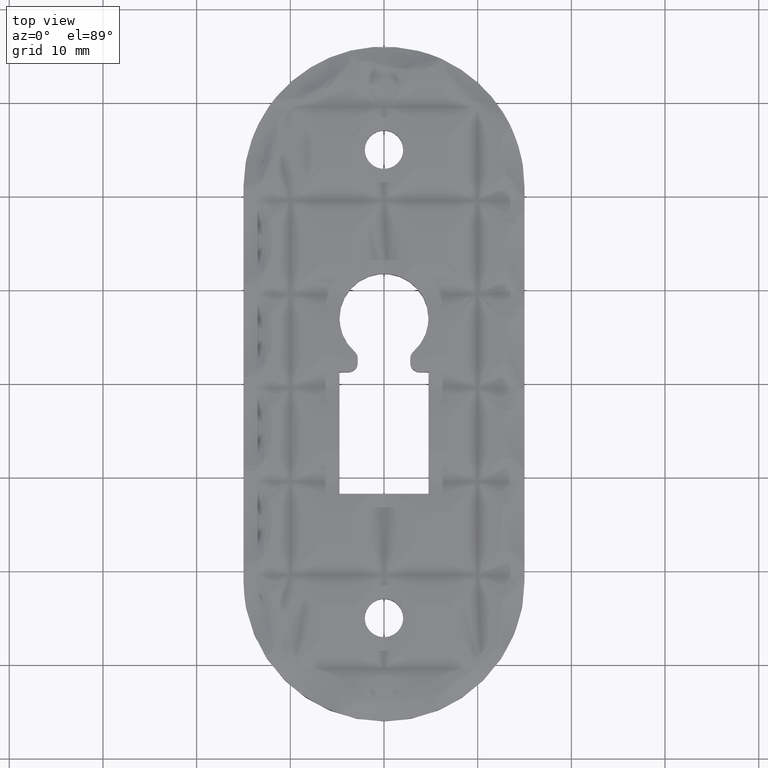
[diagram: clean part render]
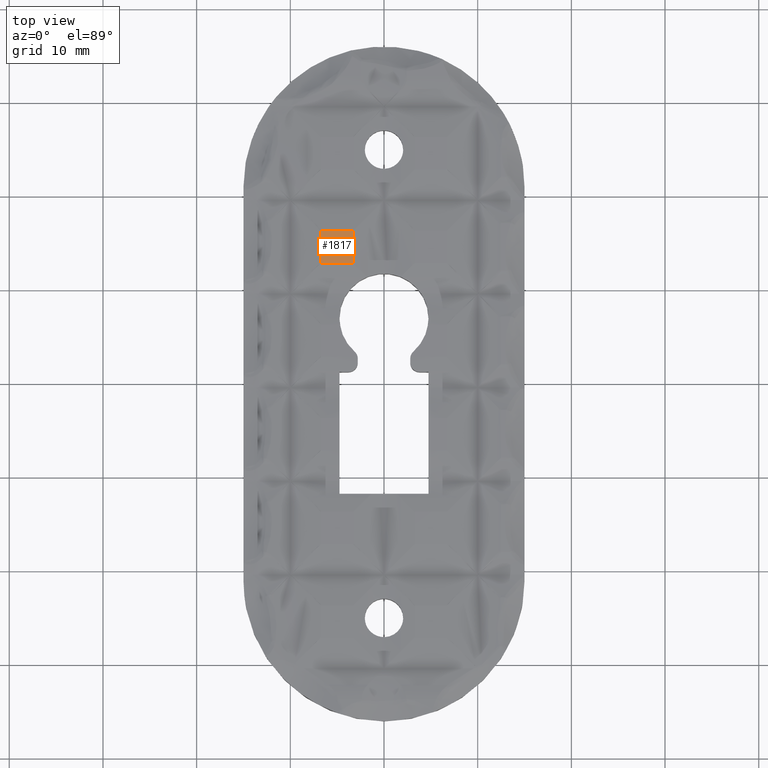
[diagram: same view with one face highlighted and labeled with its STEP entity id]
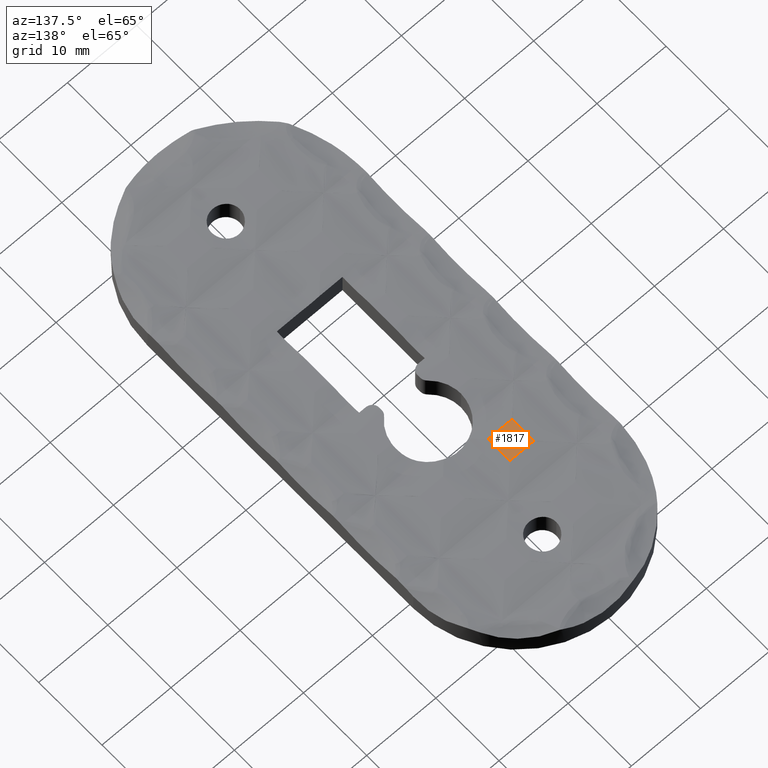
[diagram: same view with one face highlighted and labeled with its STEP entity id]
A machine part, top view. The second image highlights one B-rep face of the part: STEP entity #1817.
A second angle (auxiliary view) of the same face is appended — the face is thin or edge-on in the first view.
In plain terms, the highlighted planar face has unit normal (0, 0, 1).
Its self-contained STEP definition (entity closure, byte-faithful):
#694 = FACE_OUTER_BOUND ( 'NONE', #4011, .T. ) ;
#774 = CARTESIAN_POINT ( 'NONE',  ( -6.726049786572802200, 16.34285370310251300, 3.499999999999999600 ) ) ;
#901 = VECTOR ( 'NONE', #15986, 1000.000000000000000 ) ;
#1213 = EDGE_CURVE ( 'NONE', #24117, #13204, #11459, .T. ) ;
#1433 = ORIENTED_EDGE ( 'NONE', *, *, #16379, .F. ) ;
#1515 = LINE ( 'NONE', #12253, #901 ) ;
#1817 = ADVANCED_FACE ( 'NONE', ( #694 ), #16552, .T. ) ;
#3392 = DIRECTION ( 'NONE',  ( 1.000000000000000000, 0.0000000000000000000, 0.0000000000000000000 ) ) ;
#3423 = CARTESIAN_POINT ( 'NONE',  ( -15.00000000000000000, 16.34285370310250900, 3.499999999999998700 ) ) ;
#4011 = EDGE_LOOP ( 'NONE', ( #20297, #22891, #1433, #10691 ) ) ;
#4917 = VERTEX_POINT ( 'NONE', #19179 ) ;
#5369 = VECTOR ( 'NONE', #7470, 1000.000000000000000 ) ;
#5737 = VERTEX_POINT ( 'NONE', #9631 ) ;
#6145 = CARTESIAN_POINT ( 'NONE',  ( -2.507294680206831200E-015, 20.99999999999999600, 3.500000000000000000 ) ) ;
#6701 = VECTOR ( 'NONE', #23658, 1000.000000000000000 ) ;
#7470 = DIRECTION ( 'NONE',  ( -1.000000000000000000, -0.0000000000000000000, -0.0000000000000000000 ) ) ;
#8027 = DIRECTION ( 'NONE',  ( 1.000000000000000000, 0.0000000000000000000, -0.0000000000000000000 ) ) ;
#8505 = EDGE_CURVE ( 'NONE', #4917, #5737, #15798, .T. ) ;
#8773 = CARTESIAN_POINT ( 'NONE',  ( -3.273950213427205400, -39.76570081116073400, 3.500000000000001300 ) ) ;
#9631 = CARTESIAN_POINT ( 'NONE',  ( -6.726049786572797700, 12.89075412995689600, 3.499999999999999600 ) ) ;
#10691 = ORIENTED_EDGE ( 'NONE', *, *, #1213, .F. ) ;
#11001 = CARTESIAN_POINT ( 'NONE',  ( -15.00000000000000000, 12.89075412995690200, 3.499999999999998700 ) ) ;
#11459 = LINE ( 'NONE', #3423, #21383 ) ;
#11804 = EDGE_CURVE ( 'NONE', #24117, #5737, #1515, .T. ) ;
#12253 = CARTESIAN_POINT ( 'NONE',  ( -6.726049786572795100, 20.99999999999999600, 3.500000000000000000 ) ) ;
#12463 = CARTESIAN_POINT ( 'NONE',  ( -3.273950213427206700, 16.34285370310251300, 3.499999999999999600 ) ) ;
#13204 = VERTEX_POINT ( 'NONE', #12463 ) ;
#15798 = LINE ( 'NONE', #11001, #5369 ) ;
#15986 = DIRECTION ( 'NONE',  ( 0.0000000000000000000, -1.000000000000000000, -0.0000000000000000000 ) ) ;
#16379 = EDGE_CURVE ( 'NONE', #13204, #4917, #16578, .T. ) ;
#16552 = PLANE ( 'NONE',  #22909 ) ;
#16578 = LINE ( 'NONE', #8773, #6701 ) ;
#19126 = DIRECTION ( 'NONE',  ( 0.0000000000000000000, 0.0000000000000000000, 1.000000000000000000 ) ) ;
#19179 = CARTESIAN_POINT ( 'NONE',  ( -3.273950213427205800, 12.89075412995689600, 3.500000000000000400 ) ) ;
#20297 = ORIENTED_EDGE ( 'NONE', *, *, #11804, .T. ) ;
#21383 = VECTOR ( 'NONE', #3392, 1000.000000000000000 ) ;
#22891 = ORIENTED_EDGE ( 'NONE', *, *, #8505, .F. ) ;
#22909 = AXIS2_PLACEMENT_3D ( 'NONE', #6145, #19126, #8027 ) ;
#23658 = DIRECTION ( 'NONE',  ( -0.0000000000000000000, -1.000000000000000000, -0.0000000000000000000 ) ) ;
#24117 = VERTEX_POINT ( 'NONE', #774 ) ;